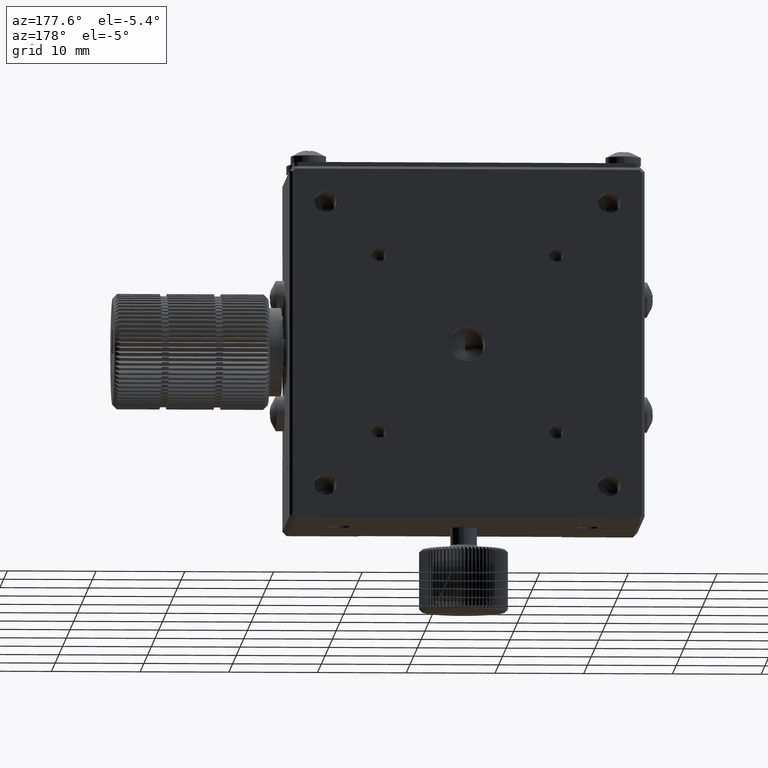
[diagram: clean part render]
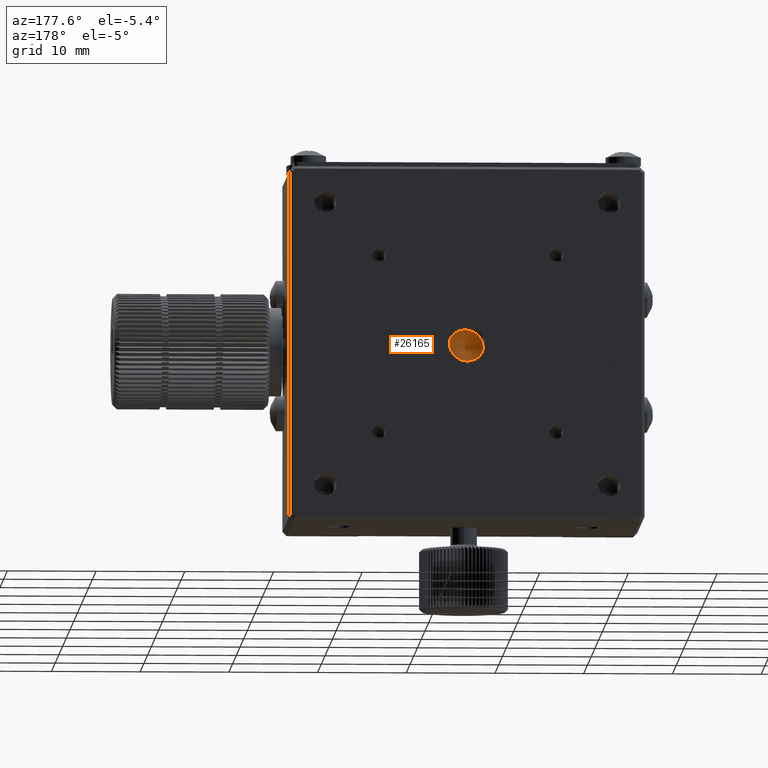
[diagram: same view with one face highlighted and labeled with its STEP entity id]
A machine part, auxiliary view. The second image highlights one B-rep face of the part: STEP entity #26165.
In plain terms, the highlighted conical surface has half-angle 59 deg.
Its self-contained STEP definition (entity closure, byte-faithful):
#4554 = DIRECTION ( 'NONE',  ( -6.938893903907226405E-16, 1.000000000000000000, 3.483473773737551866E-15 ) ) ;
#6762 = AXIS2_PLACEMENT_3D ( 'NONE', #30710, #4554, #19963 ) ;
#8940 = CIRCLE ( 'NONE', #6762, 2.000000000000001776 ) ;
#10115 = CARTESIAN_POINT ( 'NONE',  ( -33.94169290550050277, 4.857433991787727834, 28.03289764911265536 ) ) ;
#14613 = VERTEX_POINT ( 'NONE', #59789 ) ;
#15814 = EDGE_LOOP ( 'NONE', ( #60990 ) ) ;
#19963 = DIRECTION ( 'NONE',  ( 0.000000000000000000, -3.469446951953611033E-15, 1.000000000000000000 ) ) ;
#24499 = FACE_OUTER_BOUND ( 'NONE', #15814, .T. ) ;
#26165 = ADVANCED_FACE ( 'NONE', ( #24499 ), #58945, .F. ) ;
#27531 = EDGE_CURVE ( 'NONE', #14613, #14613, #8940, .T. ) ;
#30213 = DIRECTION ( 'NONE',  ( -6.505213035251976469E-16, 1.000000000000000000, 3.469446952134323290E-15 ) ) ;
#30710 = CARTESIAN_POINT ( 'NONE',  ( -33.94169290550048856, 4.857433991841478615, 28.03289764911265181 ) ) ;
#31203 = DIRECTION ( 'NONE',  ( 0.000000000000000000, -3.469446952134311457E-15, 1.000000000000000000 ) ) ;
#52555 = AXIS2_PLACEMENT_3D ( 'NONE', #10115, #30213, #31203 ) ;
#58945 = CONICAL_SURFACE ( 'NONE', #52555, 1.999999999895835101, 1.029744258523901834 ) ;
#59789 = CARTESIAN_POINT ( 'NONE',  ( -33.94169290550048856, 4.857433991841471510, 30.03289764911265181 ) ) ;
#60990 = ORIENTED_EDGE ( 'NONE', *, *, #27531, .T. ) ;